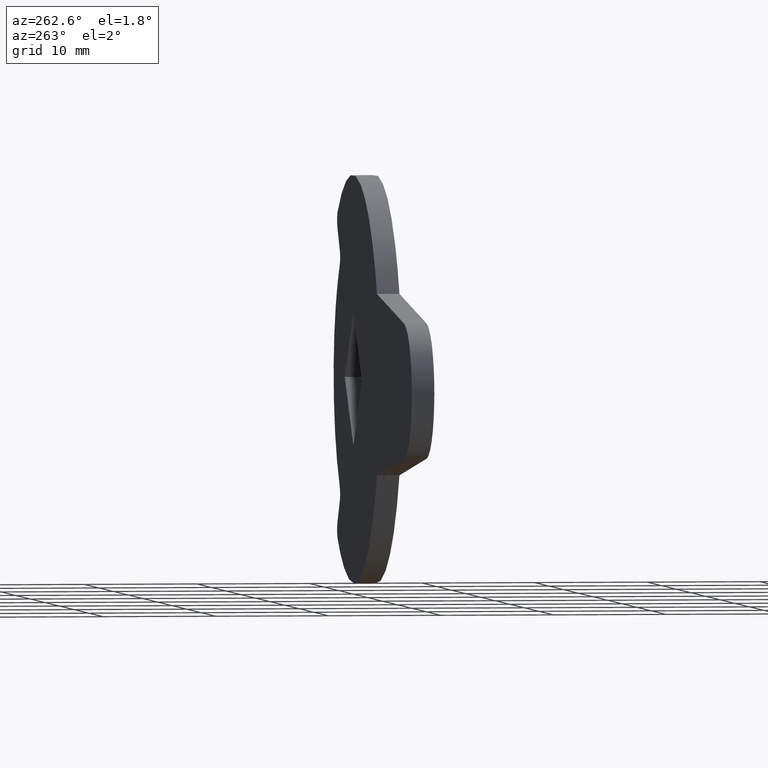
[diagram: clean part render]
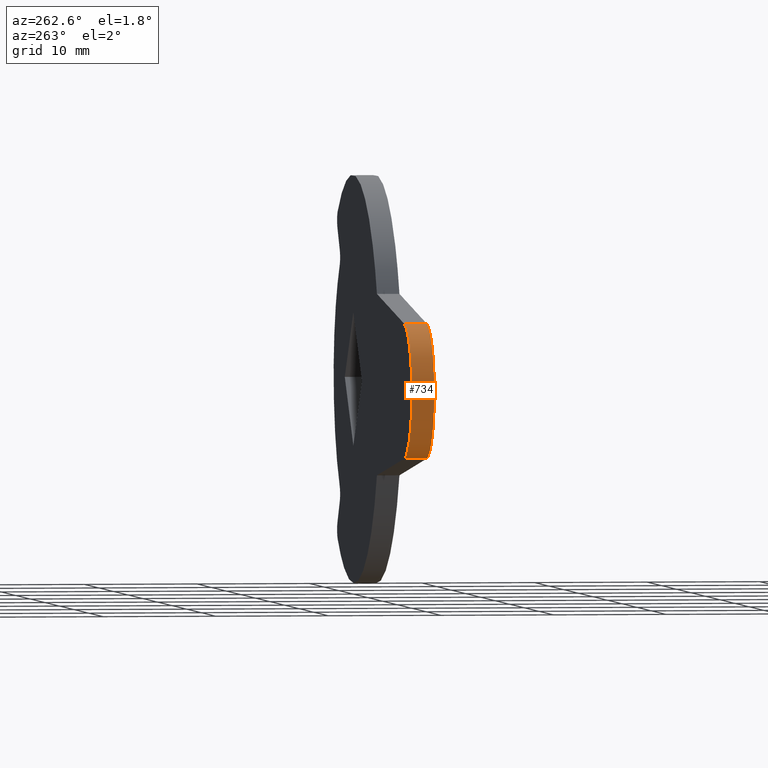
[diagram: same view with one face highlighted and labeled with its STEP entity id]
A machine part, auxiliary view. The second image highlights one B-rep face of the part: STEP entity #734.
In plain terms, the highlighted face is a freeform B-spline surface patch.
Its self-contained STEP definition (entity closure, byte-faithful):
#180=CARTESIAN_POINT('',(-34.633145301704651,0.0,-5.966479173583750));
#181=VERTEX_POINT('',#180);
#187=CARTESIAN_POINT('',(-34.633145301685097,0.0,5.966479173585831));
#188=VERTEX_POINT('',#187);
#189=CARTESIAN_POINT('',(-34.633145301685097,0.0,5.966479173585825));
#190=CARTESIAN_POINT('',(-39.999799999991154,0.0,5.396805595575883));
#191=CARTESIAN_POINT('',(-39.999799999999993,0.0,9.828506E-012));
#192=CARTESIAN_POINT('',(-39.999800000008840,0.0,-5.396805595556225));
#193=CARTESIAN_POINT('',(-34.633145301704651,0.0,-5.966479173583751));
#201=(BOUNDED_CURVE()B_SPLINE_CURVE(2,(#189,#190,#191,#192,#193),.UNSPECIFIED.,.F.,.U.)B_SPLINE_CURVE_WITH_KNOTS((3,2,3),(0.0,0.500000000000000,1.0),.UNSPECIFIED.)CURVE()GEOMETRIC_REPRESENTATION_ITEM()RATIONAL_B_SPLINE_CURVE((1.0,0.743490938170224,1.0,0.743490938170224,1.0))REPRESENTATION_ITEM(''));
#202=EDGE_CURVE('',#188,#181,#201,.T.);
#266=CARTESIAN_POINT('',(-34.633145301685097,-2.0,5.966479173585831));
#267=VERTEX_POINT('',#266);
#273=CARTESIAN_POINT('',(-34.633145301704651,-2.0,-5.966479173583750));
#274=VERTEX_POINT('',#273);
#275=CARTESIAN_POINT('',(-34.633145301685097,-2.0,5.966479173585825));
#276=CARTESIAN_POINT('',(-39.999799999991154,-2.0,5.396805595575883));
#277=CARTESIAN_POINT('',(-39.999799999999993,-2.0,9.828506E-012));
#278=CARTESIAN_POINT('',(-39.999800000008840,-2.0,-5.396805595556225));
#279=CARTESIAN_POINT('',(-34.633145301704651,-2.0,-5.966479173583751));
#287=(BOUNDED_CURVE()B_SPLINE_CURVE(2,(#275,#276,#277,#278,#279),.UNSPECIFIED.,.F.,.U.)B_SPLINE_CURVE_WITH_KNOTS((3,2,3),(0.0,0.500000000000000,1.0),.UNSPECIFIED.)CURVE()GEOMETRIC_REPRESENTATION_ITEM()RATIONAL_B_SPLINE_CURVE((1.0,0.743490938170224,1.0,0.743490938170224,1.0))REPRESENTATION_ITEM(''));
#288=EDGE_CURVE('',#267,#274,#287,.T.);
#698=CARTESIAN_POINT('',(-34.633145301704651,-2.0,-5.966479173583750));
#699=CARTESIAN_POINT('',(-34.633145301704651,0.0,-5.966479173583750));
#700=QUASI_UNIFORM_CURVE('',1,(#698,#699),.UNSPECIFIED.,.F.,.U.);
#701=EDGE_CURVE('',#274,#181,#700,.T.);
#706=CARTESIAN_POINT('',(-34.372288331015888,-2.050000000000000,5.988426541526327));
#707=CARTESIAN_POINT('',(-34.372288331015888,0.051250000000000,5.988426541526327));
#708=CARTESIAN_POINT('',(-40.005637509848782,-2.050000000000000,5.638024508688099));
#709=CARTESIAN_POINT('',(-40.005637509848782,0.051250000000000,5.638024508688099));
#710=CARTESIAN_POINT('',(-39.999796787492834,-2.050000000000000,-0.006208870721085));
#711=CARTESIAN_POINT('',(-39.999796787492834,0.051250000000000,-0.006208870721085));
#712=CARTESIAN_POINT('',(-39.993956065136864,-2.050000000000000,-5.650442250130269));
#713=CARTESIAN_POINT('',(-39.993956065136864,0.051250000000000,-5.650442250130269));
#714=CARTESIAN_POINT('',(-34.359893751164648,-2.050000000000000,-5.989184626505690));
#715=CARTESIAN_POINT('',(-34.359893751164648,0.051250000000000,-5.989184626505690));
#723=(BOUNDED_SURFACE()B_SPLINE_SURFACE(1,2,((#706,#708,#710,#712,#714),(#707,#709,#711,#713,#715)),.UNSPECIFIED.,.F.,.F.,.U.)B_SPLINE_SURFACE_WITH_KNOTS((2,2),(3,2,3),(0.0,2.101250000000000),(0.0,9.514387856764047,19.028775713528098),.UNSPECIFIED.)GEOMETRIC_REPRESENTATION_ITEM()RATIONAL_B_SPLINE_SURFACE(((1.0,0.728370969882400,1.0,0.728370969882400,1.0),(1.0,0.728370969882400,1.0,0.728370969882400,1.0)))REPRESENTATION_ITEM('')SURFACE());
#724=ORIENTED_EDGE('',*,*,#202,.T.);
#725=ORIENTED_EDGE('',*,*,#701,.F.);
#726=ORIENTED_EDGE('',*,*,#288,.F.);
#727=CARTESIAN_POINT('',(-34.633145301685097,-2.0,5.966479173585831));
#728=CARTESIAN_POINT('',(-34.633145301685097,0.0,5.966479173585831));
#729=QUASI_UNIFORM_CURVE('',1,(#727,#728),.UNSPECIFIED.,.F.,.U.);
#730=EDGE_CURVE('',#267,#188,#729,.T.);
#731=ORIENTED_EDGE('',*,*,#730,.T.);
#732=EDGE_LOOP('',(#724,#725,#726,#731));
#733=FACE_OUTER_BOUND('',#732,.T.);
#734=ADVANCED_FACE('',(#733),#723,.T.);